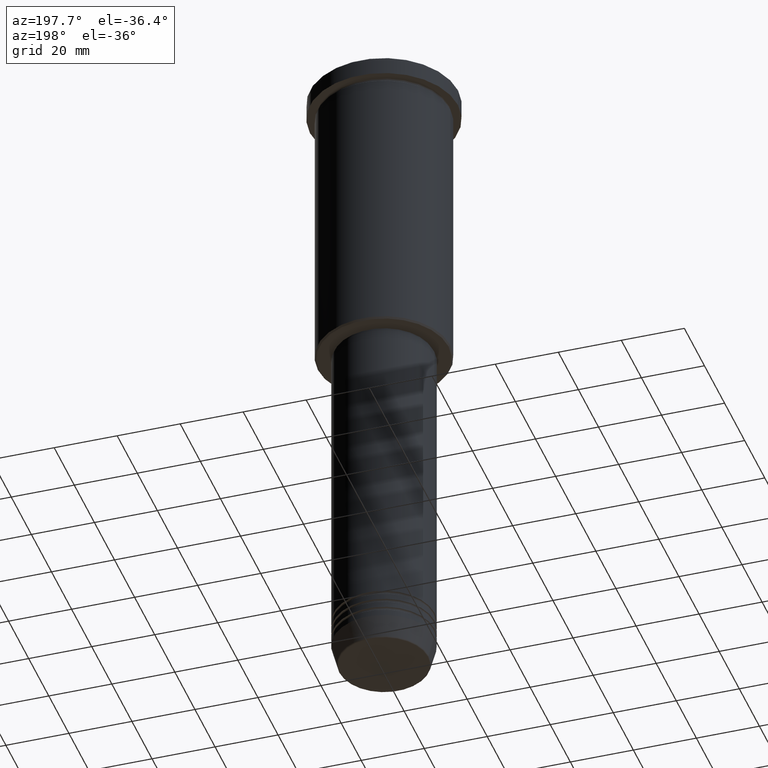
[diagram: clean part render]
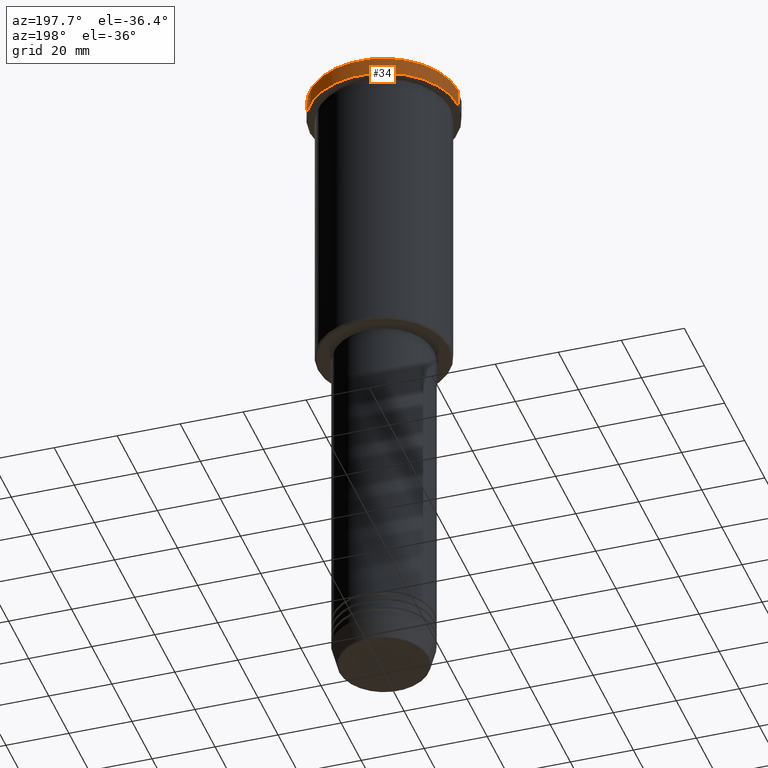
[diagram: same view with one face highlighted and labeled with its STEP entity id]
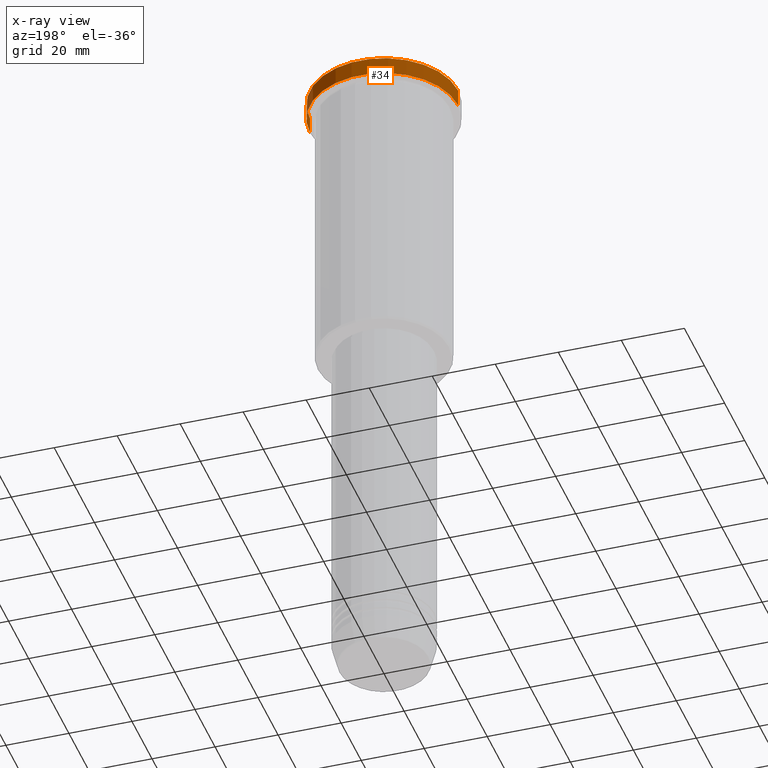
[diagram: x-ray of the same camera — body ghosted, the highlighted face saturated]
A machine part, auxiliary view. The second image highlights one B-rep face of the part: STEP entity #34.
The next image is the same camera in x-ray: the body ghosted, the highlighted face saturated — about 0% of this face is hidden behind the body in this view.
In plain terms, the highlighted cylindrical surface (partial cylindrical patch) has radius 23.5 mm, axis along (-0, -0, 1).
Its self-contained STEP definition (entity closure, byte-faithful):
#5 = CARTESIAN_POINT ( 'NONE',  ( 0.000000000000000000, 0.000000000000000000, -5.999999999999994671 ) ) ;
#21 = ORIENTED_EDGE ( 'NONE', *, *, #1048, .F. ) ;
#34 = ADVANCED_FACE ( 'NONE', ( #1120 ), #157, .T. ) ;
#35 = CARTESIAN_POINT ( 'NONE',  ( -23.50000000000000000, 2.877919977996280320E-15, -5.999999999999994671 ) ) ;
#114 = DIRECTION ( 'NONE',  ( -0.000000000000000000, -0.000000000000000000, 1.000000000000000000 ) ) ;
#157 = CYLINDRICAL_SURFACE ( 'NONE', #1014, 23.50000000000000000 ) ;
#208 = DIRECTION ( 'NONE',  ( 1.000000000000000000, 0.000000000000000000, 0.000000000000000000 ) ) ;
#211 = VERTEX_POINT ( 'NONE', #35 ) ;
#267 = AXIS2_PLACEMENT_3D ( 'NONE', #1174, #621, #208 ) ;
#270 = EDGE_CURVE ( 'NONE', #211, #922, #1121, .T. ) ;
#293 = DIRECTION ( 'NONE',  ( 1.000000000000000000, 0.000000000000000000, 0.000000000000000000 ) ) ;
#340 = CARTESIAN_POINT ( 'NONE',  ( 23.50000000000000000, 0.000000000000000000, -0.5000000000000004441 ) ) ;
#370 = VECTOR ( 'NONE', #768, 1000.000000000000000 ) ;
#425 = DIRECTION ( 'NONE',  ( 1.000000000000000000, 0.000000000000000000, 0.000000000000000000 ) ) ;
#473 = CARTESIAN_POINT ( 'NONE',  ( 23.50000000000000000, 0.000000000000000000, 0.000000000000000000 ) ) ;
#602 = VERTEX_POINT ( 'NONE', #340 ) ;
#621 = DIRECTION ( 'NONE',  ( 0.000000000000000000, 0.000000000000000000, -1.000000000000000000 ) ) ;
#726 = EDGE_LOOP ( 'NONE', ( #1051, #812, #861, #21 ) ) ;
#728 = CIRCLE ( 'NONE', #950, 23.50000000000000000 ) ;
#768 = DIRECTION ( 'NONE',  ( -0.000000000000000000, -0.000000000000000000, 1.000000000000000000 ) ) ;
#772 = CARTESIAN_POINT ( 'NONE',  ( 0.000000000000000000, 0.000000000000000000, 0.000000000000000000 ) ) ;
#801 = VECTOR ( 'NONE', #114, 1000.000000000000000 ) ;
#812 = ORIENTED_EDGE ( 'NONE', *, *, #270, .T. ) ;
#820 = CARTESIAN_POINT ( 'NONE',  ( -23.50000000000000000, 2.877919977996280320E-15, -0.5000000000000004441 ) ) ;
#829 = CARTESIAN_POINT ( 'NONE',  ( -23.50000000000000000, 2.877919977996280320E-15, 0.000000000000000000 ) ) ;
#837 = CIRCLE ( 'NONE', #267, 23.50000000000000000 ) ;
#861 = ORIENTED_EDGE ( 'NONE', *, *, #881, .T. ) ;
#881 = EDGE_CURVE ( 'NONE', #922, #602, #837, .T. ) ;
#914 = LINE ( 'NONE', #473, #801 ) ;
#922 = VERTEX_POINT ( 'NONE', #820 ) ;
#932 = EDGE_CURVE ( 'NONE', #1173, #211, #728, .T. ) ;
#947 = CARTESIAN_POINT ( 'NONE',  ( 23.50000000000000000, 0.000000000000000000, -5.999999999999994671 ) ) ;
#950 = AXIS2_PLACEMENT_3D ( 'NONE', #5, #1097, #293 ) ;
#970 = DIRECTION ( 'NONE',  ( -0.000000000000000000, -0.000000000000000000, 1.000000000000000000 ) ) ;
#1014 = AXIS2_PLACEMENT_3D ( 'NONE', #772, #970, #425 ) ;
#1048 = EDGE_CURVE ( 'NONE', #1173, #602, #914, .T. ) ;
#1051 = ORIENTED_EDGE ( 'NONE', *, *, #932, .T. ) ;
#1097 = DIRECTION ( 'NONE',  ( -0.000000000000000000, -0.000000000000000000, 1.000000000000000000 ) ) ;
#1120 = FACE_OUTER_BOUND ( 'NONE', #726, .T. ) ;
#1121 = LINE ( 'NONE', #829, #370 ) ;
#1173 = VERTEX_POINT ( 'NONE', #947 ) ;
#1174 = CARTESIAN_POINT ( 'NONE',  ( 0.000000000000000000, 0.000000000000000000, -0.5000000000000004441 ) ) ;